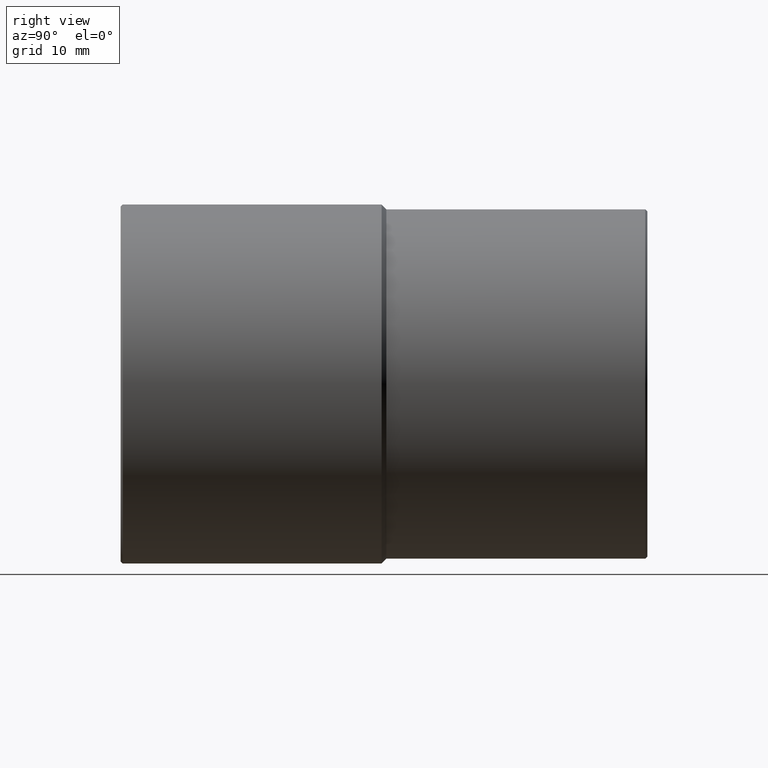
[diagram: clean part render]
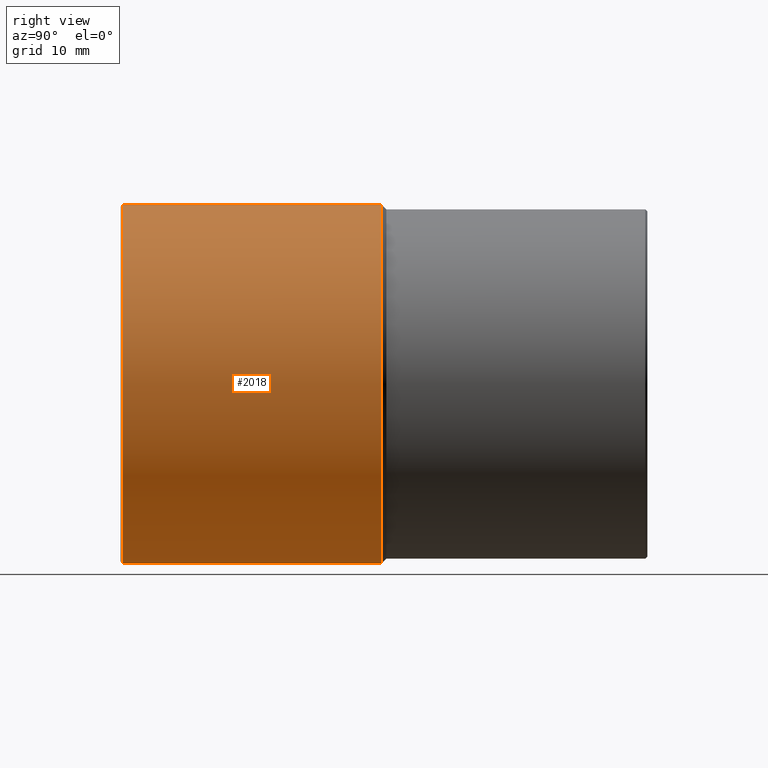
[diagram: same view with one face highlighted and labeled with its STEP entity id]
A machine part, right view. The second image highlights one B-rep face of the part: STEP entity #2018.
In plain terms, the highlighted cylindrical surface (partial cylindrical patch) has radius 22.15 mm, axis along (0, 1, 0).
Its self-contained STEP definition (entity closure, byte-faithful):
#11 = VECTOR ( 'NONE', #1490, 1000.000000000000000 ) ;
#141 = CARTESIAN_POINT ( 'NONE',  ( 0.0000000000000000000, -32.25000000000000000, 22.14999999999999900 ) ) ;
#204 = VECTOR ( 'NONE', #7048, 1000.000000000000000 ) ;
#370 = VERTEX_POINT ( 'NONE', #3625 ) ;
#634 = CARTESIAN_POINT ( 'NONE',  ( 0.0000000000000000000, -32.50000000000000000, 22.14999999999999900 ) ) ;
#791 = ORIENTED_EDGE ( 'NONE', *, *, #1519, .T. ) ;
#1422 = ORIENTED_EDGE ( 'NONE', *, *, #9697, .T. ) ;
#1490 = DIRECTION ( 'NONE',  ( 0.0000000000000000000, 1.000000000000000000, 0.0000000000000000000 ) ) ;
#1519 = EDGE_CURVE ( 'NONE', #6846, #370, #10542, .T. ) ;
#1737 = VERTEX_POINT ( 'NONE', #141 ) ;
#2018 = ADVANCED_FACE ( 'NONE', ( #8231 ), #7982, .T. ) ;
#2052 = ORIENTED_EDGE ( 'NONE', *, *, #2234, .T. ) ;
#2224 = LINE ( 'NONE', #634, #11 ) ;
#2234 = EDGE_CURVE ( 'NONE', #8950, #6846, #8824, .T. ) ;
#3280 = CIRCLE ( 'NONE', #4639, 22.14999999999999900 ) ;
#3625 = CARTESIAN_POINT ( 'NONE',  ( 0.0000000000000000000, -0.2999999999999808400, 22.14999999999999900 ) ) ;
#4332 = CARTESIAN_POINT ( 'NONE',  ( 0.0000000000000000000, -32.25000000000000000, 0.0000000000000000000 ) ) ;
#4639 = AXIS2_PLACEMENT_3D ( 'NONE', #4332, #10146, #5175 ) ;
#5175 = DIRECTION ( 'NONE',  ( 0.0000000000000000000, 0.0000000000000000000, 1.000000000000000000 ) ) ;
#6164 = AXIS2_PLACEMENT_3D ( 'NONE', #7135, #7279, #7362 ) ;
#6846 = VERTEX_POINT ( 'NONE', #7248 ) ;
#6947 = CARTESIAN_POINT ( 'NONE',  ( 2.712592660111387200E-015, -32.50000000000000000, -22.14999999999999900 ) ) ;
#7048 = DIRECTION ( 'NONE',  ( 0.0000000000000000000, 1.000000000000000000, 0.0000000000000000000 ) ) ;
#7135 = CARTESIAN_POINT ( 'NONE',  ( 0.0000000000000000000, -32.50000000000000000, 0.0000000000000000000 ) ) ;
#7248 = CARTESIAN_POINT ( 'NONE',  ( 2.712592660111387200E-015, -0.2999999999999808400, -22.14999999999999900 ) ) ;
#7279 = DIRECTION ( 'NONE',  ( 0.0000000000000000000, 1.000000000000000000, 0.0000000000000000000 ) ) ;
#7362 = DIRECTION ( 'NONE',  ( 0.0000000000000000000, 0.0000000000000000000, 1.000000000000000000 ) ) ;
#7519 = AXIS2_PLACEMENT_3D ( 'NONE', #7539, #8587, #7978 ) ;
#7539 = CARTESIAN_POINT ( 'NONE',  ( 0.0000000000000000000, -0.2999999999999808400, 0.0000000000000000000 ) ) ;
#7978 = DIRECTION ( 'NONE',  ( 0.0000000000000000000, 0.0000000000000000000, 1.000000000000000000 ) ) ;
#7982 = CYLINDRICAL_SURFACE ( 'NONE', #6164, 22.14999999999999900 ) ;
#8231 = FACE_OUTER_BOUND ( 'NONE', #9452, .T. ) ;
#8587 = DIRECTION ( 'NONE',  ( 0.0000000000000000000, -1.000000000000000000, 0.0000000000000000000 ) ) ;
#8824 = LINE ( 'NONE', #6947, #204 ) ;
#8950 = VERTEX_POINT ( 'NONE', #9475 ) ;
#9106 = ORIENTED_EDGE ( 'NONE', *, *, #9934, .F. ) ;
#9452 = EDGE_LOOP ( 'NONE', ( #1422, #2052, #791, #9106 ) ) ;
#9475 = CARTESIAN_POINT ( 'NONE',  ( 2.712592660111387200E-015, -32.25000000000000000, -22.14999999999999900 ) ) ;
#9697 = EDGE_CURVE ( 'NONE', #1737, #8950, #3280, .T. ) ;
#9934 = EDGE_CURVE ( 'NONE', #1737, #370, #2224, .T. ) ;
#10146 = DIRECTION ( 'NONE',  ( -0.0000000000000000000, 1.000000000000000000, -0.0000000000000000000 ) ) ;
#10542 = CIRCLE ( 'NONE', #7519, 22.14999999999999900 ) ;